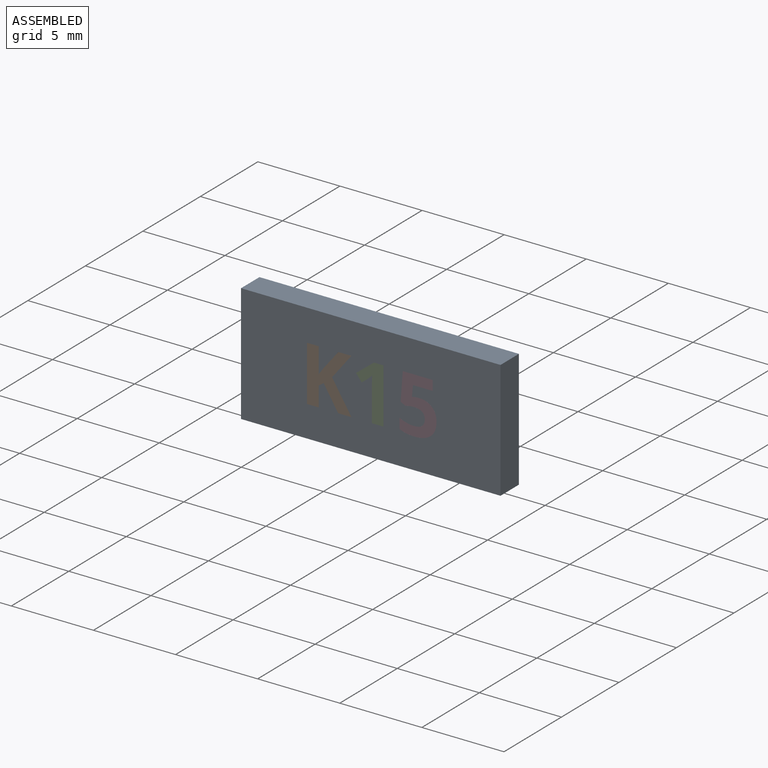
[diagram: assembled view]
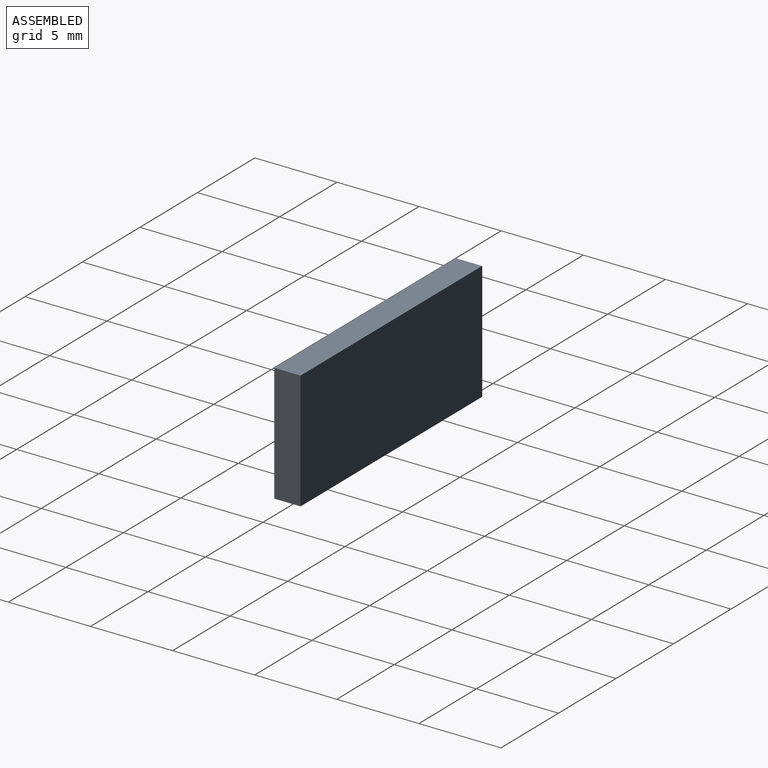
[diagram: assembled view, second angle]
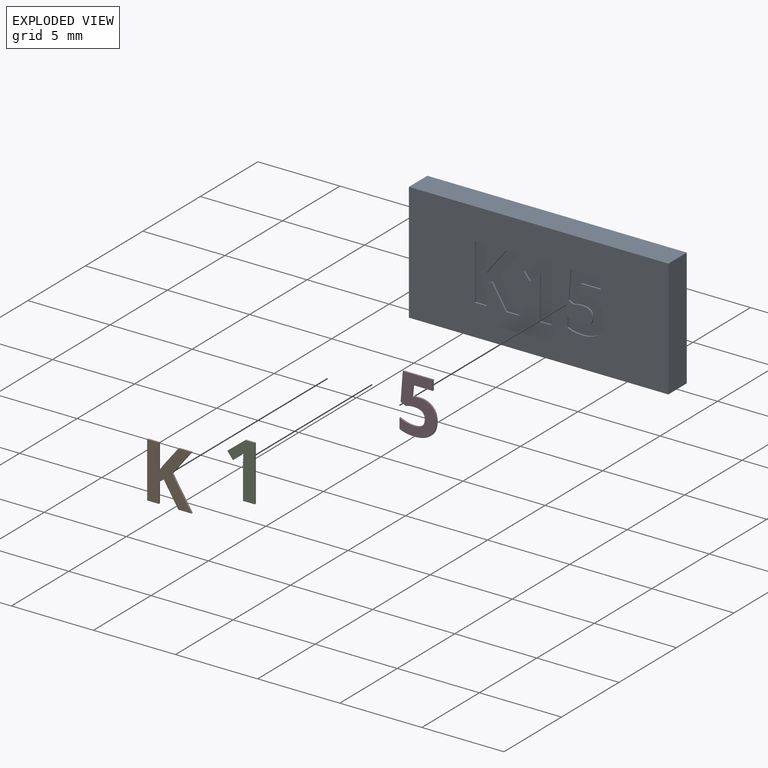
[diagram: exploded view]
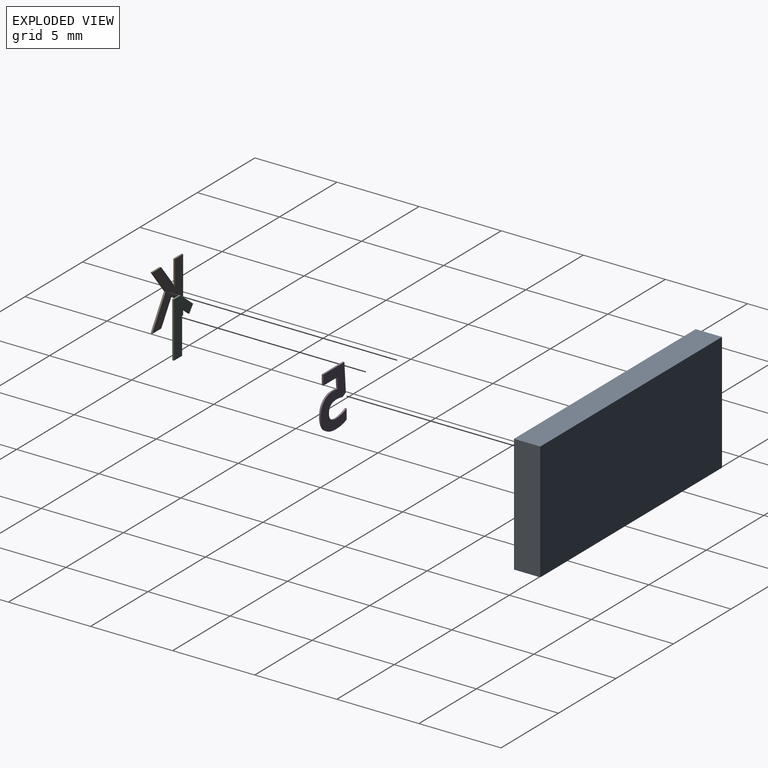
[diagram: exploded view, second angle]
ASSEMBLY  parts=4 mates=3
PART A: 52 faces, bbox 15.8x1.6x7.2 mm
  f0: plane 15.8x7.2mm, normal (0,-1,0), area 101.1mm2, adj f1,f2,f3,f4,f6,f7,f8,f9
  f1: plane 7.2x1.6mm, normal (1,0,0), area 11.5mm2, adj f0,f2,f4,f5
  f2: plane 15.8x1.6mm, normal (0,0,1), area 25.3mm2, adj f0,f1,f3,f5
  f3: plane 7.2x1.6mm, normal (-1,0,0), area 11.5mm2, adj f0,f2,f4,f5
  f4: plane 15.8x1.6mm, normal (0,0,-1), area 25.3mm2, adj f0,f1,f3,f5
  f5: plane 15.8x7.2mm, normal (0,1,0), area 113.8mm2, adj f1,f2,f3,f4
  f6: extruded ~0.35x0.1mm, area 0mm2, adj f0,f7,f25,f26
  f7: plane 0.1x0.08mm, normal (0.2,0,-0.98), area 0mm2, adj f0,f6,f8,f26
  f8: plane 0.66x0.1mm, normal (-1,0,0.09), area 0.1mm2, adj f0,f7,f9,f26
  f9: plane 1.2x0.1mm, normal (0,0,1), area 0.1mm2, adj f0,f8,f10,f26
  f10: plane 0.6x0.1mm, normal (-1,0,0), area 0.1mm2, adj f0,f9,f11,f26
  f11: plane 1.83x0.1mm, normal (0,0,-1), area 0.2mm2, adj f0,f10,f12,f26
  f12: plane 1.72x0.13mm, normal (1,0,-0.07), area 0.2mm2, adj f0,f11,f13,f26
  f13: plane 0.28x0.15mm, normal (0.47,0,0.88), area 0mm2, adj f0,f12,f14,f26
  f14: extruded ~0.24x0.1mm, area 0mm2, adj f0,f13,f15,f26
  f15: extruded ~0.27x0.1mm, area 0mm2, adj f0,f14,f16,f26
  f16: extruded ~0.68x0.51mm, area 0.1mm2, adj f0,f15,f17,f26
  f17: extruded ~0.65x0.54mm, area 0.1mm2, adj f0,f16,f18,f26
  f18: extruded ~0.46x0.1mm, area 0mm2, adj f0,f17,f19,f26
  f19: extruded ~0.42x0.16mm, area 0mm2, adj f0,f18,f20,f26
  f20: plane 0.62x0.1mm, normal (1,0,0), area 0.1mm2, adj f0,f19,f21,f26
  f21: extruded ~0.91x0.18mm, area 0.1mm2, adj f0,f20,f22,f26
  f22: extruded ~1x0.3mm, area 0.1mm2, adj f0,f21,f23,f26
  f23: extruded ~0.87x0.35mm, area 0.1mm2, adj f0,f22,f24,f26
  f24: extruded ~0.75x0.29mm, area 0.1mm2, adj f0,f23,f25,f26
  f25: extruded ~0.78x0.27mm, area 0.1mm2, adj f0,f6,f24,f26
  f26: plane 3.42x2.25mm, normal (0,-1,0), area 4.5mm2, adj f6,f7,f8,f9,f10,f11,f12,f13
  f27: plane 3.37x0.1mm, normal (-1,0,0), area 0.3mm2, adj f0,f28,f36,f37
  f28: plane 0.59x0.1mm, normal (0,0,-1), area 0.1mm2, adj f0,f27,f29,f37
  f29: plane 1.09x0.86mm, normal (0.62,0,-0.78), area 0.1mm2, adj f0,f28,f30,f37
  f30: plane 0.43x0.34mm, normal (0.78,0,0.63), area 0.1mm2, adj f0,f29,f31,f37
  f31: plane 0.39x0.31mm, normal (-0.63,0,0.78), area 0mm2, adj f0,f30,f32,f37
  f32: extruded ~0.25x0.23mm, area 0mm2, adj f0,f31,f33,f37
  f33: plane 0.35x0.1mm, normal (1,0,-0.03), area 0mm2, adj f0,f32,f34,f37
  f34: plane 0.32x0.1mm, normal (1,0,-0.02), area 0mm2, adj f0,f33,f35,f37
  f35: plane 1.95x0.1mm, normal (1,0,0), area 0.2mm2, adj f0,f34,f36,f37
  f36: plane 0.71x0.1mm, normal (0,0,1), area 0.1mm2, adj f0,f27,f35,f37
  f37: plane 3.37x1.67mm, normal (0,-1,0), area 2.9mm2, adj f27,f28,f29,f30,f31,f32,f33,f34
  f38: plane 1.88x1.19mm, normal (-0.85,0,-0.53), area 0.2mm2, adj f0,f39,f50,f51
  f39: plane 1.49x1.18mm, normal (-0.79,0,0.62), area 0.2mm2, adj f0,f38,f40,f51
  f40: plane 0.79x0.1mm, normal (0,0,-1), area 0.1mm2, adj f0,f39,f41,f51
  f41: plane 1.15x0.91mm, normal (0.78,0,-0.62), area 0.1mm2, adj f0,f40,f42,f51
  f42: plane 0.4x0.28mm, normal (0.82,0,-0.58), area 0mm2, adj f0,f41,f43,f51
  f43: plane 1.54x0.1mm, normal (-1,0,0), area 0.2mm2, adj f0,f42,f44,f51
  f44: plane 0.72x0.1mm, normal (0,0,-1), area 0.1mm2, adj f0,f43,f45,f51
  f45: plane 3.37x0.1mm, normal (1,0,0), area 0.3mm2, adj f0,f44,f46,f51
  f46: plane 0.72x0.1mm, normal (0,0,1), area 0.1mm2, adj f0,f45,f47,f51
  f47: plane 1.2x0.1mm, normal (-1,0,0), area 0.1mm2, adj f0,f46,f48,f51
  f48: plane 0.3x0.22mm, normal (-0.58,0,0.81), area 0mm2, adj f0,f47,f49,f51
  f49: plane 1.42x0.88mm, normal (0.85,0,0.53), area 0.2mm2, adj f0,f48,f50,f51
  f50: plane 0.81x0.1mm, normal (0,0,1), area 0.1mm2, adj f0,f38,f49,f51
  f51: plane 3.37x2.71mm, normal (0,-1,0), area 5.2mm2, adj f38,f39,f40,f41,f42,f43,f44,f45
PART B: 15 faces, bbox 2.7x0.1x3.4 mm
  f0: plane 3.37x2.71mm, normal (0,-1,0), area 5.2mm2, adj f1,f2,f3,f4,f5,f6,f7,f8
  f1: plane 1.49x1.18mm, normal (0.79,0,-0.62), area 0.2mm2, adj f0,f2,f11,f13
  f2: plane 0.79x0.1mm, normal (0,0,1), area 0.1mm2, adj f0,f1,f3,f11
  f3: plane 1.15x0.91mm, normal (-0.78,0,0.62), area 0.1mm2, adj f0,f2,f4,f11
  f4: plane 0.4x0.28mm, normal (-0.82,0,0.58), area 0mm2, adj f0,f3,f5,f11
  f5: plane 1.54x0.1mm, normal (1,0,0), area 0.2mm2, adj f0,f4,f6,f11
  f6: plane 0.72x0.1mm, normal (0,0,1), area 0.1mm2, adj f0,f5,f7,f11
  f7: plane 3.37x0.1mm, normal (-1,0,0), area 0.3mm2, adj f0,f6,f8,f11
  f8: plane 0.72x0.1mm, normal (0,0,-1), area 0.1mm2, adj f0,f7,f9,f11
  f9: plane 1.2x0.1mm, normal (1,0,0), area 0.1mm2, adj f0,f8,f10,f11
  f10: plane 0.3x0.22mm, normal (0.58,0,-0.81), area 0mm2, adj f0,f9,f11,f12
  f11: plane 3.37x2.71mm, normal (0,1,0), area 5.2mm2, adj f1,f2,f3,f4,f5,f6,f7,f8
  f12: plane 1.42x0.88mm, normal (-0.85,0,-0.53), area 0.2mm2, adj f0,f10,f11,f14
  f13: plane 1.88x1.19mm, normal (0.85,0,0.53), area 0.2mm2, adj f0,f1,f11,f14
  f14: plane 0.81x0.1mm, normal (0,0,-1), area 0.1mm2, adj f0,f11,f12,f13
PART C: 12 faces, bbox 1.7x0.1x3.4 mm
  f0: plane 3.37x1.67mm, normal (0,-1,0), area 2.9mm2, adj f1,f2,f3,f4,f5,f6,f7,f9
  f1: plane 0.59x0.1mm, normal (0,0,1), area 0.1mm2, adj f0,f2,f8,f10
  f2: plane 1.09x0.86mm, normal (-0.62,0,0.78), area 0.1mm2, adj f0,f1,f3,f8
  f3: plane 0.43x0.34mm, normal (-0.78,0,-0.63), area 0.1mm2, adj f0,f2,f4,f8
  f4: plane 0.39x0.31mm, normal (0.63,0,-0.78), area 0mm2, adj f0,f3,f5,f8
  f5: extruded ~0.25x0.23mm, area 0mm2, adj f0,f4,f6,f8
  f6: plane 0.35x0.1mm, normal (-1,0,0.03), area 0mm2, adj f0,f5,f7,f8
  f7: plane 0.32x0.1mm, normal (-1,0,0.02), area 0mm2, adj f0,f6,f8,f9
  f8: plane 3.37x1.67mm, normal (0,1,0), area 2.9mm2, adj f1,f2,f3,f4,f5,f6,f7,f9
  f9: plane 1.95x0.1mm, normal (-1,0,0), area 0.2mm2, adj f0,f7,f8,f11
  f10: plane 3.37x0.1mm, normal (1,0,0), area 0.3mm2, adj f0,f1,f8,f11
  f11: plane 0.71x0.1mm, normal (0,0,-1), area 0.1mm2, adj f0,f8,f9,f10
PART D: 22 faces, bbox 2.3x0.1x3.4 mm
  f0: plane 3.42x2.25mm, normal (0,-1,0), area 4.5mm2, adj f1,f2,f3,f4,f5,f6,f7,f8
  f1: plane 0.1x0.08mm, normal (-0.2,0,0.98), area 0mm2, adj f0,f2,f18,f20
  f2: plane 0.66x0.1mm, normal (1,0,-0.09), area 0.1mm2, adj f0,f1,f3,f18
  f3: plane 1.2x0.1mm, normal (0,0,-1), area 0.1mm2, adj f0,f2,f4,f18
  f4: plane 0.6x0.1mm, normal (1,0,0), area 0.1mm2, adj f0,f3,f5,f18
  f5: plane 1.83x0.1mm, normal (0,0,1), area 0.2mm2, adj f0,f4,f6,f18
  f6: plane 1.72x0.13mm, normal (-1,0,0.07), area 0.2mm2, adj f0,f5,f7,f18
  f7: plane 0.28x0.15mm, normal (-0.47,0,-0.88), area 0mm2, adj f0,f6,f8,f18
  f8: extruded ~0.24x0.1mm, area 0mm2, adj f0,f7,f9,f18
  f9: extruded ~0.27x0.1mm, area 0mm2, adj f0,f8,f10,f18
  f10: extruded ~0.68x0.51mm, area 0.1mm2, adj f0,f9,f11,f18
  f11: extruded ~0.65x0.54mm, area 0.1mm2, adj f0,f10,f12,f18
  f12: extruded ~0.46x0.1mm, area 0mm2, adj f0,f11,f13,f18
  f13: extruded ~0.42x0.16mm, area 0mm2, adj f0,f12,f14,f18
  f14: plane 0.62x0.1mm, normal (-1,0,0), area 0.1mm2, adj f0,f13,f15,f18
  f15: extruded ~0.91x0.18mm, area 0.1mm2, adj f0,f14,f16,f18
  f16: extruded ~1x0.3mm, area 0.1mm2, adj f0,f15,f17,f18
  f17: extruded ~0.87x0.35mm, area 0.1mm2, adj f0,f16,f18,f19
  f18: plane 3.42x2.25mm, normal (0,1,0), area 4.5mm2, adj f1,f2,f3,f4,f5,f6,f7,f8
  f19: extruded ~0.75x0.29mm, area 0.1mm2, adj f0,f17,f18,f21
  f20: extruded ~0.35x0.1mm, area 0mm2, adj f0,f1,f18,f21
  f21: extruded ~0.78x0.27mm, area 0.1mm2, adj f0,f18,f19,f20
PLACE A t=(-0.05,0.79,0.02)mm
PLACE B t=(-1.66,-0.01,0.02)mm
PLACE C t=(-1.66,-0.01,0.02)mm
PLACE D t=(1.3,-0.01,0.02)mm
MATE fastened C.f0 <-> A.f0  axis (0,-1,0) through (0.02,-0.81,-1.68)mm
MATE fastened B.f0 <-> A.f0  axis (0,-1,0) through (-3.93,-0.81,-1.68)mm
MATE fastened D.f0 <-> A.f0  axis (0,-1,0) through (1.7,-0.81,-1.54)mm
